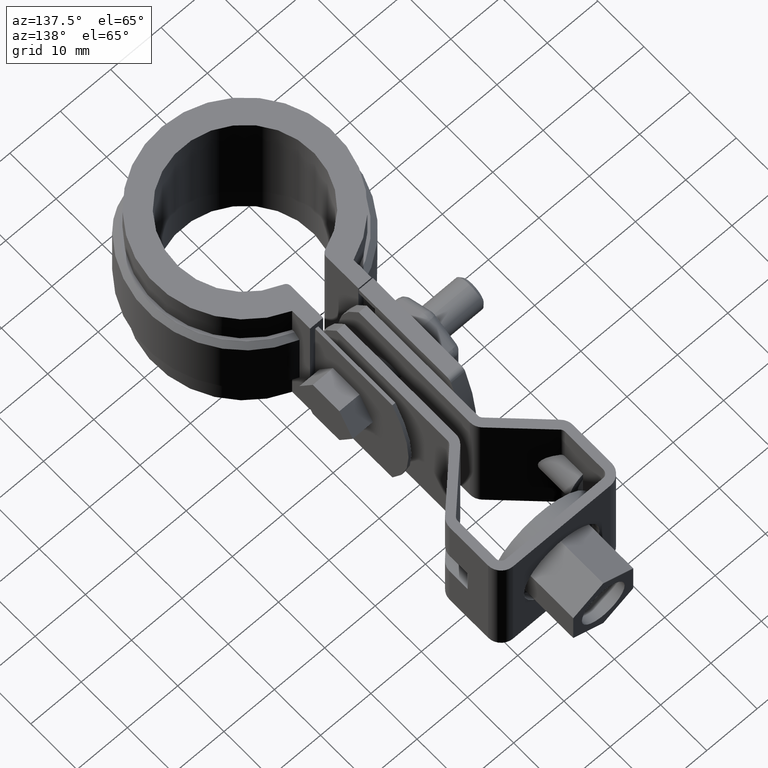
[diagram: clean part render]
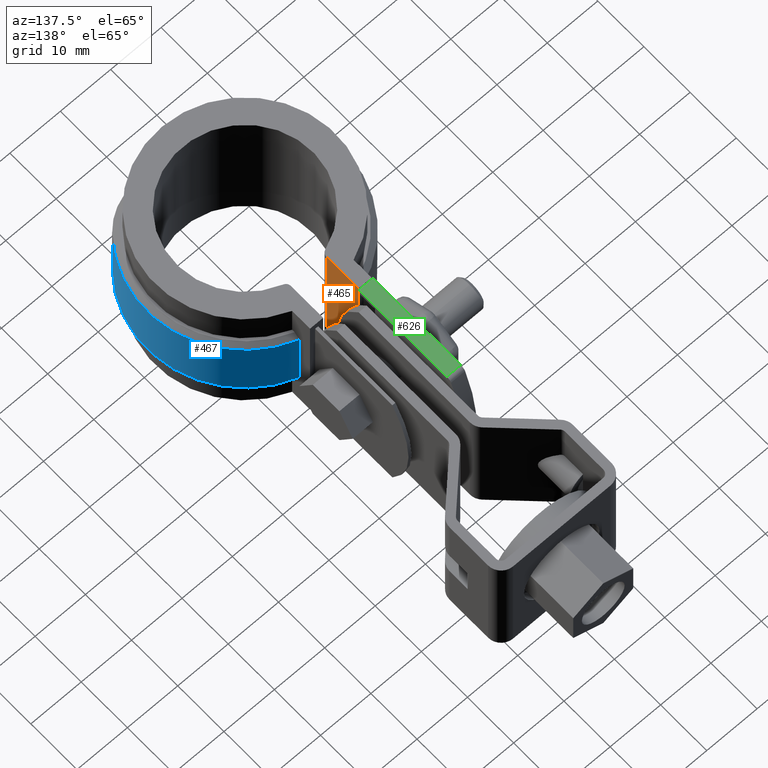
[diagram: same view with three faces highlighted in distinct colors, each labeled with its STEP entity id]
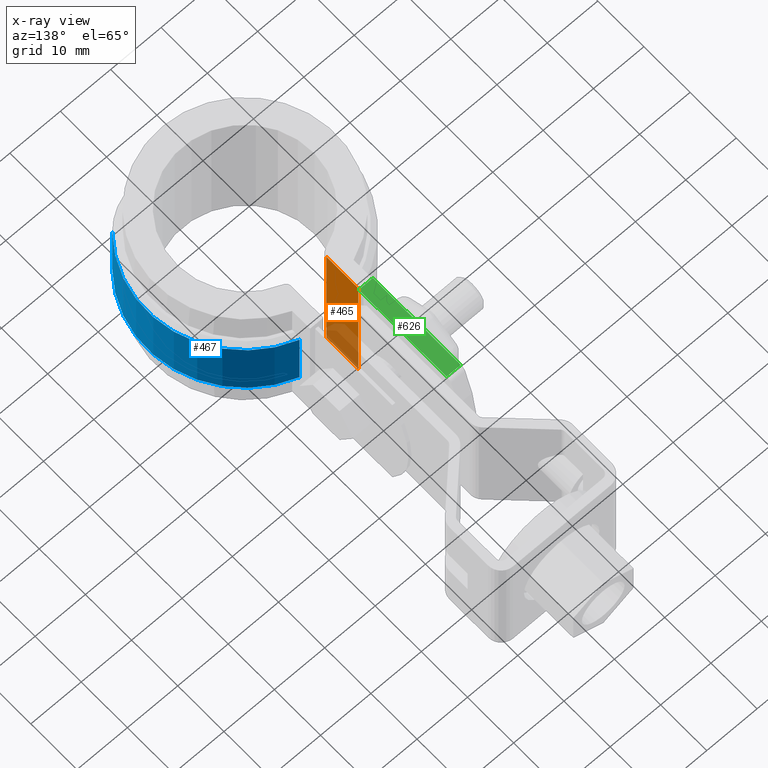
[diagram: x-ray of the same camera — body ghosted, the three highlighted faces saturated]
A machine part, auxiliary view with three faces highlighted in distinct colors.
The next image is the same camera in x-ray (body ghosted, the three faces saturated) — at least one of them is partly hidden behind the body in this view.
Their STEP definitions:

[orange] entity #465 — the highlighted planar face has unit normal (1, -0, 0).
#465 = ADVANCED_FACE( '', ( #901 ), #902, .T. );
#901 = FACE_OUTER_BOUND( '', #1934, .T. );
#902 = PLANE( '', #1935 );
#1934 = EDGE_LOOP( '', ( #4120, #4121, #4122, #4123 ) );
#1935 = AXIS2_PLACEMENT_3D( '', #4124, #4125, #4126 );
#4120 = ORIENTED_EDGE( '', *, *, #6216, .F. );
#4121 = ORIENTED_EDGE( '', *, *, #6307, .T. );
#4122 = ORIENTED_EDGE( '', *, *, #6122, .T. );
#4123 = ORIENTED_EDGE( '', *, *, #6107, .T. );
#4124 = CARTESIAN_POINT( '', ( -3.50000000000000, 13.0332277276199, -26.5000000000000 ) );
#4125 = DIRECTION( '', ( 1.00000000000000, -6.07153216591882E-017, 0.000000000000000 ) );
#4126 = DIRECTION( '', ( 0.000000000000000, 0.000000000000000, 1.00000000000000 ) );
#6107 = EDGE_CURVE( '', #7110, #7108, #7111, .F. );
#6122 = EDGE_CURVE( '', #7138, #7110, #7139, .T. );
#6216 = EDGE_CURVE( '', #7308, #7108, #7310, .F. );
#6307 = EDGE_CURVE( '', #7308, #7138, #7444, .T. );
#7108 = VERTEX_POINT( '', #9372 );
#7110 = VERTEX_POINT( '', #9375 );
#7111 = LINE( '', #9376, #9377 );
#7138 = VERTEX_POINT( '', #9417 );
#7139 = LINE( '', #9418, #9419 );
#7308 = VERTEX_POINT( '', #10227 );
#7310 = LINE( '', #10229, #10230 );
#7444 = LINE( '', #10520, #10521 );
#9372 = CARTESIAN_POINT( '', ( -3.50000000000000, 20.7500000000000, 1.50000000000000 ) );
#9375 = CARTESIAN_POINT( '', ( -3.50000000000000, 20.7500000000000, -26.5000000000000 ) );
#9376 = CARTESIAN_POINT( '', ( -3.50000000000000, 20.7500000000000, -26.5000000000000 ) );
#9377 = VECTOR( '', #12132, 1000.00000000000 );
#9417 = CARTESIAN_POINT( '', ( -3.50000000000000, 13.7840487520902, -26.5000000000000 ) );
#9418 = CARTESIAN_POINT( '', ( -3.50000000000000, 13.0332277276199, -26.5000000000000 ) );
#9419 = VECTOR( '', #12149, 1000.00000000000 );
#10227 = CARTESIAN_POINT( '', ( -3.50000000000000, 13.7840487520902, 1.50000000000000 ) );
#10229 = CARTESIAN_POINT( '', ( -3.50000000000000, 15.3831076184235, 1.50000000000000 ) );
#10230 = VECTOR( '', #12241, 1000.00000000000 );
#10520 = CARTESIAN_POINT( '', ( -3.50000000000000, 13.7840487520902, -26.5000000000000 ) );
#10521 = VECTOR( '', #12378, 1000.00000000000 );
#12132 = DIRECTION( '', ( 0.000000000000000, 0.000000000000000, -1.00000000000000 ) );
#12149 = DIRECTION( '', ( 6.07153216591882E-017, 1.00000000000000, 0.000000000000000 ) );
#12241 = DIRECTION( '', ( -6.07153216591882E-017, -1.00000000000000, 0.000000000000000 ) );
#12378 = DIRECTION( '', ( 0.000000000000000, 0.000000000000000, -1.00000000000000 ) );

[blue] entity #467 — the highlighted cylindrical surface (partial cylindrical patch) has radius 19.435 mm, axis along (0, 0, 1).
#467 = ADVANCED_FACE( '', ( #905 ), #906, .T. );
#905 = FACE_OUTER_BOUND( '', #1938, .T. );
#906 = CYLINDRICAL_SURFACE( '', #1939, 19.4350000000000 );
#1938 = EDGE_LOOP( '', ( #4134, #4135, #4136, #4137 ) );
#1939 = AXIS2_PLACEMENT_3D( '', #4138, #4139, #4140 );
#4134 = ORIENTED_EDGE( '', *, *, #6294, .F. );
#4135 = ORIENTED_EDGE( '', *, *, #6284, .T. );
#4136 = ORIENTED_EDGE( '', *, *, #6298, .F. );
#4137 = ORIENTED_EDGE( '', *, *, #6305, .T. );
#4138 = CARTESIAN_POINT( '', ( -8.67361737988404E-016, 0.000000000000000, -20.0000000000000 ) );
#4139 = DIRECTION( '', ( 0.000000000000000, 0.000000000000000, 1.00000000000000 ) );
#4140 = DIRECTION( '', ( 0.262413172112169, 0.964955608876403, 0.000000000000000 ) );
#6284 = EDGE_CURVE( '', #7412, #7409, #7414, .T. );
#6294 = EDGE_CURVE( '', #7412, #7429, #7430, .T. );
#6298 = EDGE_CURVE( '', #7416, #7409, #7434, .T. );
#6305 = EDGE_CURVE( '', #7416, #7429, #7442, .T. );
#7409 = VERTEX_POINT( '', #10465 );
#7412 = VERTEX_POINT( '', #10469 );
#7414 = CIRCLE( '', #10474, 19.4350000000000 );
#7416 = VERTEX_POINT( '', #10476 );
#7429 = VERTEX_POINT( '', #10496 );
#7430 = LINE( '', #10497, #10498 );
#7434 = LINE( '', #10505, #10506 );
#7442 = CIRCLE( '', #10518, 19.4350000000000 );
#10465 = CARTESIAN_POINT( '', ( 14.5583830689193, -12.8752750424448, -5.99999999999999 ) );
#10469 = CARTESIAN_POINT( '', ( 6.10000000000001, 18.4528920497574, -6.00000000000000 ) );
#10474 = AXIS2_PLACEMENT_3D( '', #12338, #12339, #12340 );
#10476 = CARTESIAN_POINT( '', ( 14.5583830689193, -12.8752750424448, -19.0000000000000 ) );
#10496 = CARTESIAN_POINT( '', ( 6.10000000000001, 18.4528920497574, -19.0000000000000 ) );
#10497 = CARTESIAN_POINT( '', ( 6.10000000000001, 18.4528920497574, -20.0000000000000 ) );
#10498 = VECTOR( '', #12354, 1000.00000000000 );
#10505 = CARTESIAN_POINT( '', ( 14.5583830689193, -12.8752750424448, -20.0000000000000 ) );
#10506 = VECTOR( '', #12361, 1000.00000000000 );
#10518 = AXIS2_PLACEMENT_3D( '', #12372, #12373, #12374 );
#12338 = CARTESIAN_POINT( '', ( -8.67361737988404E-016, 0.000000000000000, -6.00000000000000 ) );
#12339 = DIRECTION( '', ( 0.000000000000000, 0.000000000000000, -1.00000000000000 ) );
#12340 = DIRECTION( '', ( -1.00000000000000, 0.000000000000000, 0.000000000000000 ) );
#12354 = DIRECTION( '', ( 0.000000000000000, 0.000000000000000, -1.00000000000000 ) );
#12361 = DIRECTION( '', ( 0.000000000000000, 0.000000000000000, 1.00000000000000 ) );
#12372 = CARTESIAN_POINT( '', ( -8.67361737988404E-016, 0.000000000000000, -19.0000000000000 ) );
#12373 = DIRECTION( '', ( 0.000000000000000, 0.000000000000000, 1.00000000000000 ) );
#12374 = DIRECTION( '', ( 1.00000000000000, 0.000000000000000, 0.000000000000000 ) );

[green] entity #626 — the highlighted planar face has unit normal (0, 0, -1).
#626 = ADVANCED_FACE( '', ( #1246 ), #1247, .F. );
#1246 = FACE_OUTER_BOUND( '', #2415, .T. );
#1247 = PLANE( '', #2416 );
#2415 = EDGE_LOOP( '', ( #5448, #5449, #5450, #5451 ) );
#2416 = AXIS2_PLACEMENT_3D( '', #5452, #5453, #5454 );
#5448 = ORIENTED_EDGE( '', *, *, #6698, .F. );
#5449 = ORIENTED_EDGE( '', *, *, #6773, .T. );
#5450 = ORIENTED_EDGE( '', *, *, #6774, .F. );
#5451 = ORIENTED_EDGE( '', *, *, #6770, .T. );
#5452 = CARTESIAN_POINT( '', ( -6.30000000000003, 20.8219465658195, 1.19999999999990 ) );
#5453 = DIRECTION( '', ( 6.23565794846649E-020, 1.25318295324441E-016, -1.00000000000000 ) );
#5454 = DIRECTION( '', ( -1.00000000000000, 1.50846410965565E-051, -6.23565794846649E-020 ) );
#6698 = EDGE_CURVE( '', #8118, #8120, #8121, .T. );
#6770 = EDGE_CURVE( '', #8224, #8120, #8225, .T. );
#6773 = EDGE_CURVE( '', #8118, #8229, #8230, .T. );
#6774 = EDGE_CURVE( '', #8224, #8229, #8231, .T. );
#8118 = VERTEX_POINT( '', #11535 );
#8120 = VERTEX_POINT( '', #11537 );
#8121 = LINE( '', #11538, #11539 );
#8224 = VERTEX_POINT( '', #11706 );
#8225 = LINE( '', #11707, #11708 );
#8229 = VERTEX_POINT( '', #11714 );
#8230 = LINE( '', #11715, #11716 );
#8231 = LINE( '', #11717, #11718 );
#11535 = CARTESIAN_POINT( '', ( -3.50000000000003, 39.8654028015101, 1.19999999999991 ) );
#11537 = CARTESIAN_POINT( '', ( -3.50000000000003, 20.8219465658195, 1.19999999999991 ) );
#11538 = CARTESIAN_POINT( '', ( -3.50000000000003, 40.1132367180500, 1.19999999999992 ) );
#11539 = VECTOR( '', #12949, 1000.00000000000 );
#11706 = CARTESIAN_POINT( '', ( -6.30000000000003, 20.8219465658195, 1.19999999999988 ) );
#11707 = CARTESIAN_POINT( '', ( -6.30000000000003, 20.8219465658195, 1.19999999999988 ) );
#11708 = VECTOR( '', #13035, 1000.00000000000 );
#11714 = CARTESIAN_POINT( '', ( -6.30000000000003, 39.8654028015101, 1.19999999999991 ) );
#11715 = CARTESIAN_POINT( '', ( -3.50000000000003, 39.8654028015101, 1.19999999999991 ) );
#11716 = VECTOR( '', #13038, 1000.00000000000 );
#11717 = CARTESIAN_POINT( '', ( -6.30000000000003, 20.8219465658195, 1.19999999999990 ) );
#11718 = VECTOR( '', #13039, 1000.00000000000 );
#12949 = DIRECTION( '', ( -5.56970201441962E-017, -1.00000000000000, -5.55111512312578E-017 ) );
#13035 = DIRECTION( '', ( 1.00000000000000, -5.53681883903847E-017, 6.23565794846579E-020 ) );
#13038 = DIRECTION( '', ( -1.00000000000000, -1.77553823037274E-016, 1.31611162143792E-020 ) );
#13039 = DIRECTION( '', ( 5.56970201441962E-017, 1.00000000000000, 1.25318295324441E-016 ) );